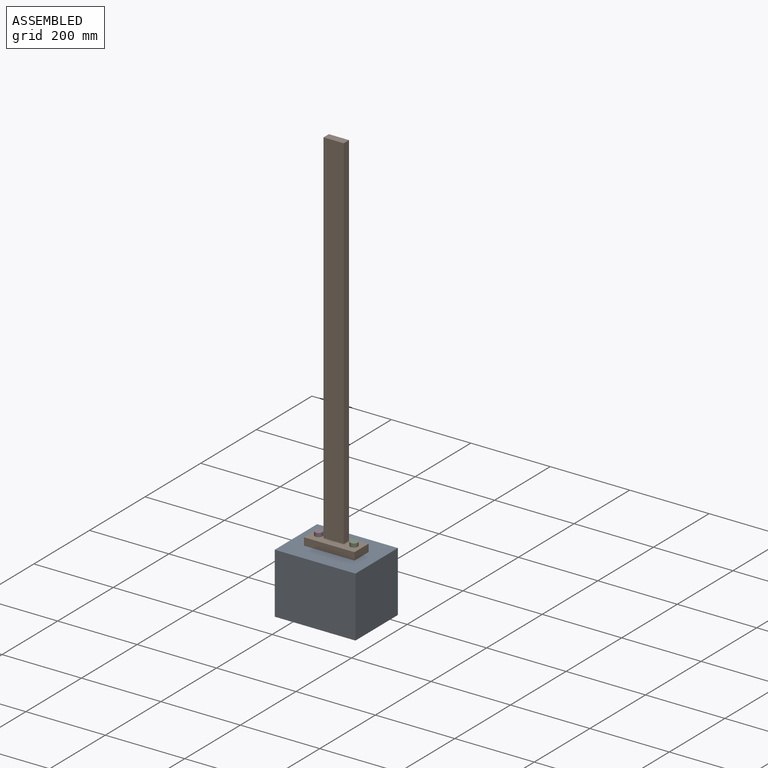
[diagram: assembled view]
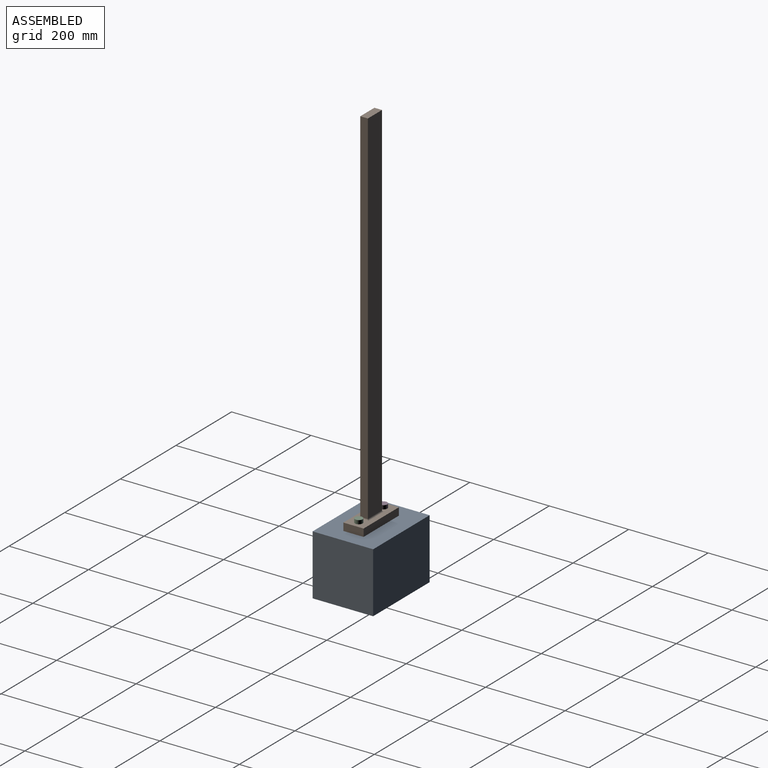
[diagram: assembled view, second angle]
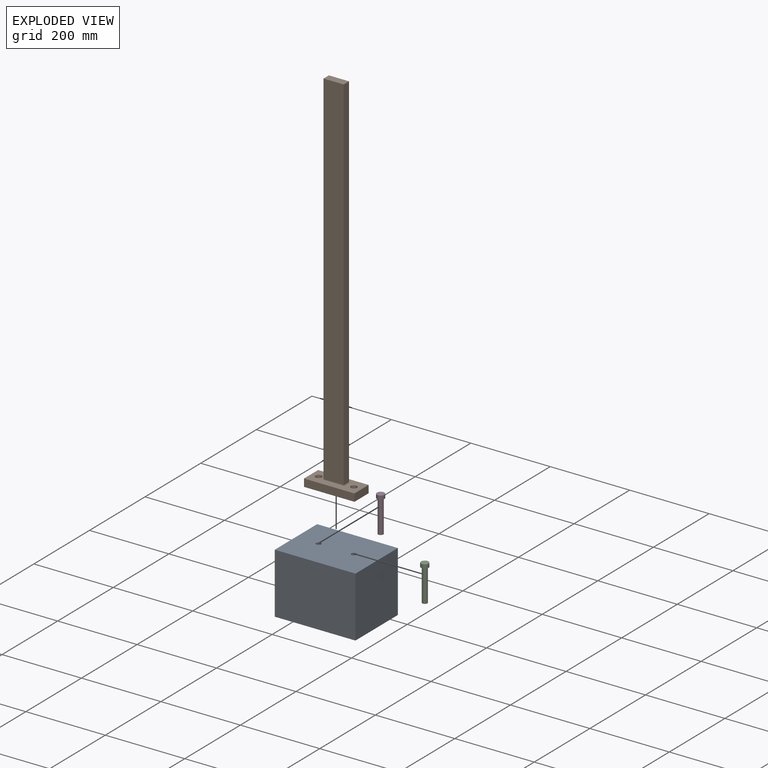
[diagram: exploded view]
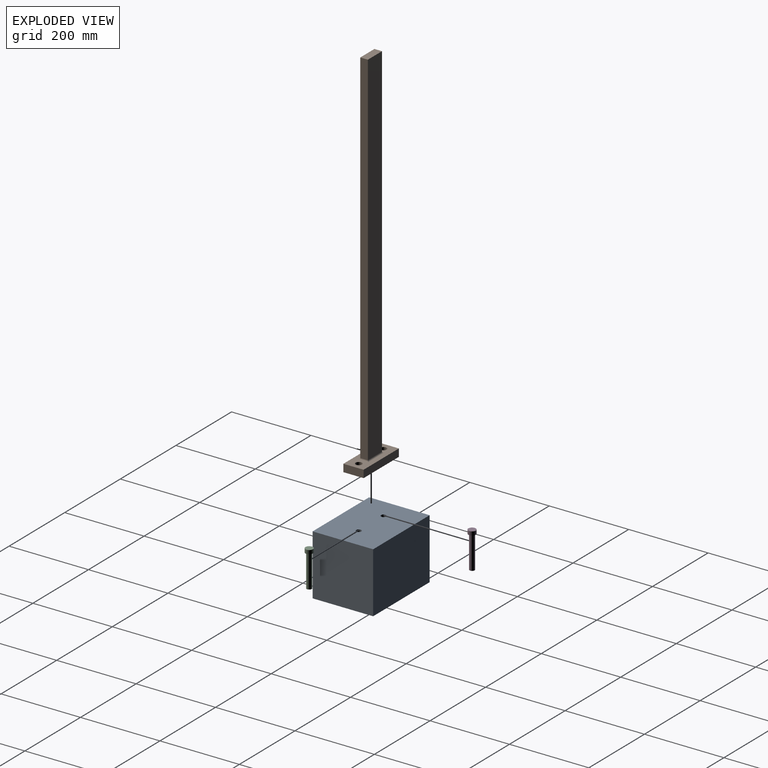
[diagram: exploded view, second angle]
ASSEMBLY  parts=4 mates=6
PART A: 8 faces, bbox 203.2x152.4x152.4 mm
  f0: plane 203.2x152.4mm, normal (0,-1,0), area 30967.7mm2, adj f1,f3,f4,f5
  f1: plane 152.4x152.4mm, normal (1,0,0), area 23225.8mm2, adj f0,f2,f4,f5
  f2: plane 203.2x152.4mm, normal (0,1,0), area 30967.7mm2, adj f1,f3,f4,f5
  f3: plane 152.4x152.4mm, normal (-1,0,0), area 23225.8mm2, adj f0,f2,f4,f5
  f4: plane 203.2x152.4mm, normal (0,0,1), area 30714.3mm2, adj f0,f1,f2,f3,f6,f7
  f5: plane 203.2x152.4mm, normal (0,0,-1), area 30714.3mm2, adj f0,f1,f2,f3,f6,f7
  f6: cylinder r=6.35mm len=152.4mm, axis (0,0,1), area 6080.5mm2, adj f4,f5
  f7: cylinder r=6.35mm len=152.4mm, axis (0,0,1), area 6080.5mm2, adj f4,f5
PART B: 17 faces, bbox 127x50.8x933.5 mm
  f0: plane 127x50.8mm, normal (0,0,1), area 4604.1mm2, adj f1,f3,f4,f5,f11,f12,f13,f14
  f1: plane 127x19.05mm, normal (0,-1,0), area 2419.3mm2, adj f0,f2,f4,f5
  f2: plane 127x50.8mm, normal (0,0,-1), area 6055.7mm2, adj f1,f3,f4,f5,f11,f12
  f3: plane 127x19.05mm, normal (0,1,0), area 2419.3mm2, adj f0,f2,f4,f5
  f4: plane 50.8x19.05mm, normal (1,0,0), area 967.7mm2, adj f0,f1,f2,f3
  f5: plane 50.8x19.05mm, normal (-1,0,0), area 967.7mm2, adj f0,f1,f2,f3
  f6: plane 911.23x50.8mm, normal (0,1,0), area 46290.2mm2, adj f7,f9,f10,f13
  f7: plane 911.23x19.05mm, normal (-1,0,0), area 17358.8mm2, adj f6,f8,f10,f14
  f8: plane 911.23x50.8mm, normal (0,-1,0), area 46290.2mm2, adj f7,f9,f10,f16
  f9: plane 911.23x19.05mm, normal (1,0,0), area 17358.8mm2, adj f6,f8,f10,f15
  f10: plane 50.8x19.05mm, normal (0,0,1), area 967.7mm2, adj f6,f7,f8,f9
  f11: cylinder r=7.94mm len=19.05mm, axis (0,0,1), area 950.1mm2, adj f0,f2
  f12: cylinder r=7.94mm len=19.05mm, axis (0,0,1), area 950.1mm2, adj f0,f2
  f13: cylinder r=3.17mm len=57.15mm, axis (-1,0,0), area 264.9mm2, adj f0,f6,f14,f15
  f14: cylinder r=3.17mm len=25.4mm, axis (0,-1,0), area 106.5mm2, adj f0,f7,f13,f16
  f15: cylinder r=3.17mm len=25.4mm, axis (0,1,0), area 106.5mm2, adj f0,f9,f13,f16
  f16: cylinder r=3.17mm len=57.15mm, axis (1,0,0), area 264.9mm2, adj f0,f8,f14,f15
PART C: 5 faces, bbox 19.1x19.1x91.3 mm
  f0: plane 12.7x12.7mm, normal (0,0,-1), area 126.7mm2, adj f4
  f1: plane 19.05x19.05mm, normal (0,0,1), area 285mm2, adj f2
  f2: cylinder r=9.53mm len=19.05mm, axis (0,0,-1), area 570mm2, adj f1,f3
  f3: plane 19.05x19.05mm, normal (0,0,-1), area 158.3mm2, adj f2,f4
  f4: cylinder r=6.35mm len=81.79mm, axis (0,0,-1), area 3263.2mm2, adj f0,f3
PART D: same geometry as C
PLACE A t=(-90.38,-11.4,57.24)mm
PLACE B t=(-90.38,-36.8,209.64)mm
PLACE C t=(-45.93,-11.4,238.21)mm
PLACE D t=(-134.83,-11.4,238.21)mm
MATE planar B.f2 <-> A.f4  axis (0,0,-1) through (-90.38,-11.4,209.64)mm
MATE slider A.f7 <-> B.f11  axis (0,0,1) through (-134.83,-11.4,133.44)mm
MATE planar B.f0 <-> D.f2  axis (0,0,1) through (-90.38,-11.4,228.69)mm
MATE planar B.f0 <-> C.f2  axis (0,0,1) through (-90.38,-11.4,228.69)mm
MATE slider C.f2 <-> B.f12  axis (0,0,-1) through (-45.93,-11.4,187.79)mm
MATE slider D.f2 <-> B.f11  axis (0,0,-1) through (-134.83,-11.4,187.79)mm
